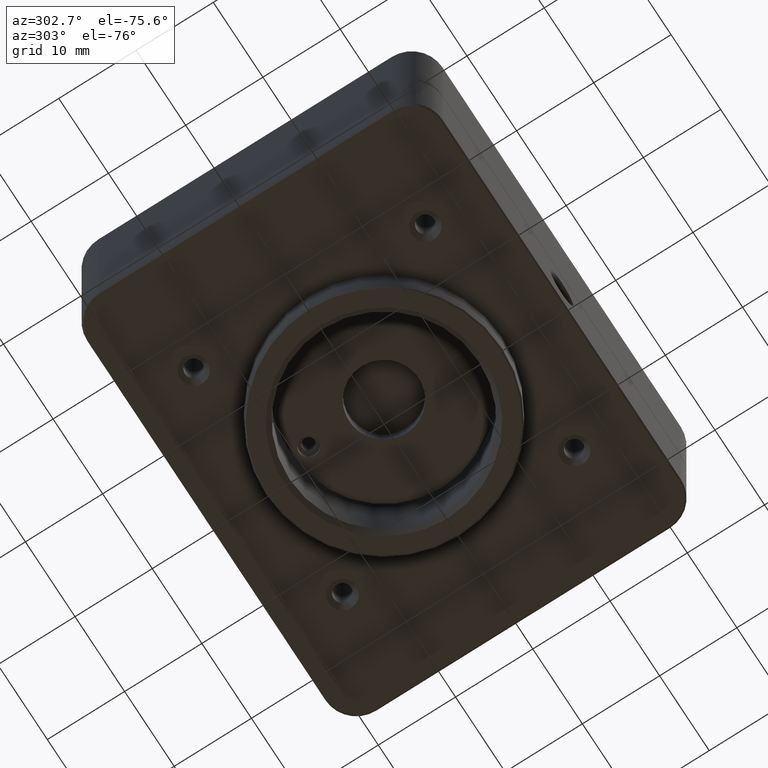
[diagram: clean part render]
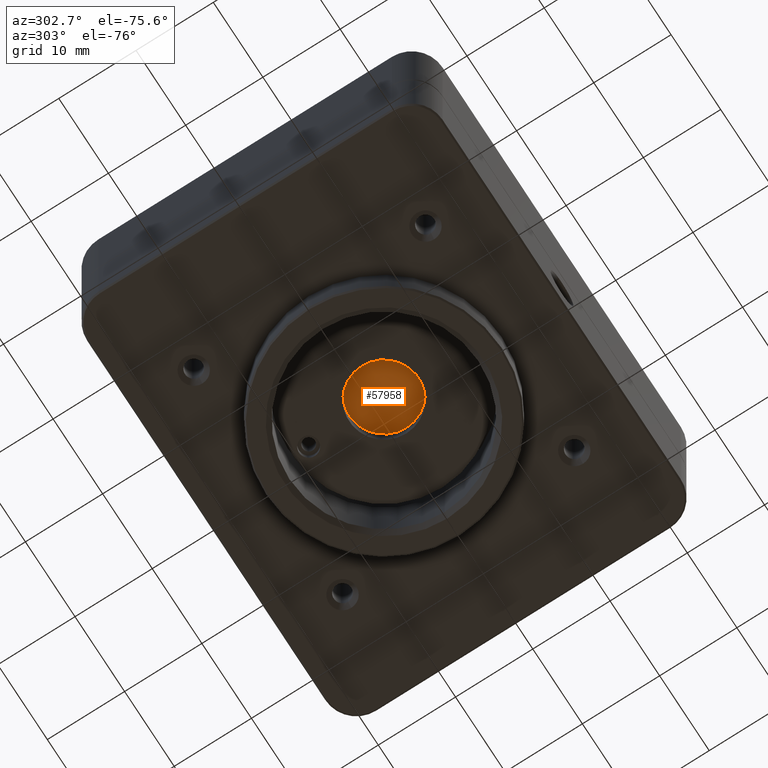
[diagram: same view with one face highlighted and labeled with its STEP entity id]
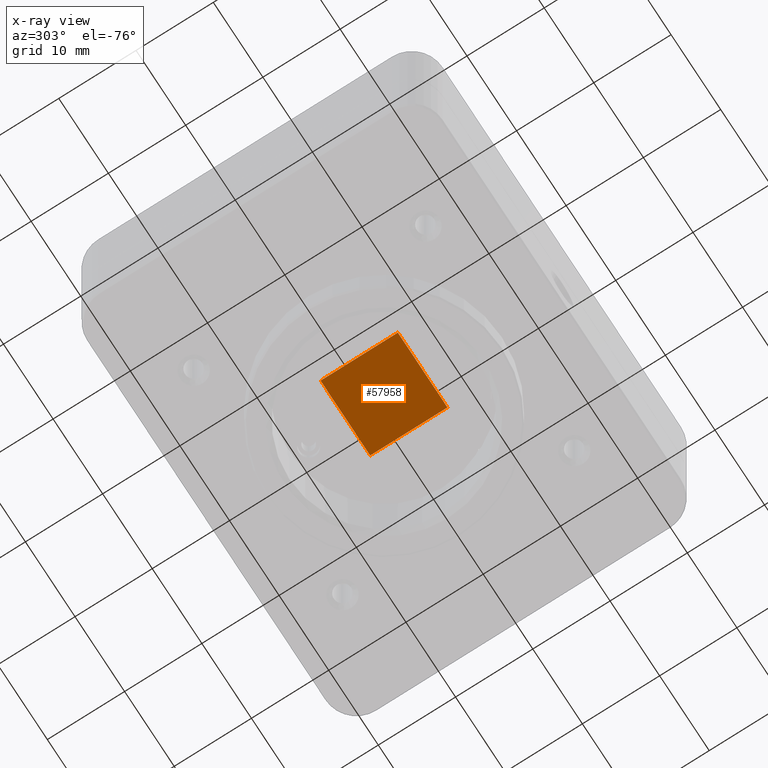
[diagram: x-ray of the same camera — body ghosted, the highlighted face saturated]
A machine part, auxiliary view. The second image highlights one B-rep face of the part: STEP entity #57958.
The next image is the same camera in x-ray: the body ghosted, the highlighted face saturated — about 0% of this face is hidden behind the body in this view.
In plain terms, the highlighted planar face has unit normal (0, 0, -1).
Its self-contained STEP definition (entity closure, byte-faithful):
#1880 = DIRECTION ( 'NONE',  ( 1.000000000000000000, 0.0000000000000000000, 0.0000000000000000000 ) ) ;
#4292 = PLANE ( 'NONE',  #43488 ) ;
#6052 = DIRECTION ( 'NONE',  ( 0.0000000000000000000, 1.000000000000000000, 0.0000000000000000000 ) ) ;
#9707 = CARTESIAN_POINT ( 'NONE',  ( -5.000000000000000000, 4.999999999999999100, 0.0000000000000000000 ) ) ;
#10148 = CARTESIAN_POINT ( 'NONE',  ( -5.000000000000000000, -4.999999999999999100, 0.0000000000000000000 ) ) ;
#11525 = VECTOR ( 'NONE', #82826, 1000.000000000000000 ) ;
#17841 = CARTESIAN_POINT ( 'NONE',  ( 5.000000000000000000, 4.999999999999999100, 0.0000000000000000000 ) ) ;
#18242 = FACE_OUTER_BOUND ( 'NONE', #62156, .T. ) ;
#20762 = DIRECTION ( 'NONE',  ( -1.000000000000000000, 0.0000000000000000000, -0.0000000000000000000 ) ) ;
#22380 = EDGE_CURVE ( 'NONE', #78584, #73975, #100094, .T. ) ;
#25555 = VECTOR ( 'NONE', #81028, 1000.000000000000000 ) ;
#36203 = ORIENTED_EDGE ( 'NONE', *, *, #62080, .F. ) ;
#36919 = CARTESIAN_POINT ( 'NONE',  ( -5.000000000000000000, 4.999999999999999100, 0.0000000000000000000 ) ) ;
#43488 = AXIS2_PLACEMENT_3D ( 'NONE', #36919, #69973, #20762 ) ;
#45325 = VECTOR ( 'NONE', #1880, 1000.000000000000000 ) ;
#46991 = CARTESIAN_POINT ( 'NONE',  ( 5.000000000000000000, -4.999999999999999100, 0.0000000000000000000 ) ) ;
#47958 = LINE ( 'NONE', #10148, #45325 ) ;
#54413 = ORIENTED_EDGE ( 'NONE', *, *, #22380, .F. ) ;
#57958 = ADVANCED_FACE ( 'NONE', ( #18242 ), #4292, .T. ) ;
#62080 = EDGE_CURVE ( 'NONE', #73975, #71929, #88499, .T. ) ;
#62156 = EDGE_LOOP ( 'NONE', ( #100687, #36203, #54413, #87909 ) ) ;
#69973 = DIRECTION ( 'NONE',  ( 0.0000000000000000000, 0.0000000000000000000, -1.000000000000000000 ) ) ;
#71018 = VERTEX_POINT ( 'NONE', #84416 ) ;
#71929 = VERTEX_POINT ( 'NONE', #9707 ) ;
#73975 = VERTEX_POINT ( 'NONE', #17841 ) ;
#78223 = VECTOR ( 'NONE', #6052, 1000.000000000000000 ) ;
#78584 = VERTEX_POINT ( 'NONE', #78733 ) ;
#78733 = CARTESIAN_POINT ( 'NONE',  ( 5.000000000000000000, -4.999999999999999100, 0.0000000000000000000 ) ) ;
#81028 = DIRECTION ( 'NONE',  ( -1.000000000000000000, -0.0000000000000000000, -0.0000000000000000000 ) ) ;
#82826 = DIRECTION ( 'NONE',  ( -0.0000000000000000000, -1.000000000000000000, -0.0000000000000000000 ) ) ;
#84416 = CARTESIAN_POINT ( 'NONE',  ( -5.000000000000000000, -4.999999999999999100, 0.0000000000000000000 ) ) ;
#86275 = EDGE_CURVE ( 'NONE', #71018, #78584, #47958, .T. ) ;
#87909 = ORIENTED_EDGE ( 'NONE', *, *, #86275, .F. ) ;
#88499 = LINE ( 'NONE', #105861, #25555 ) ;
#91525 = CARTESIAN_POINT ( 'NONE',  ( -5.000000000000000000, -4.999999999999999100, 0.0000000000000000000 ) ) ;
#95195 = EDGE_CURVE ( 'NONE', #71929, #71018, #96354, .T. ) ;
#96354 = LINE ( 'NONE', #91525, #11525 ) ;
#100094 = LINE ( 'NONE', #46991, #78223 ) ;
#100687 = ORIENTED_EDGE ( 'NONE', *, *, #95195, .F. ) ;
#105861 = CARTESIAN_POINT ( 'NONE',  ( -5.000000000000000000, 4.999999999999999100, 0.0000000000000000000 ) ) ;